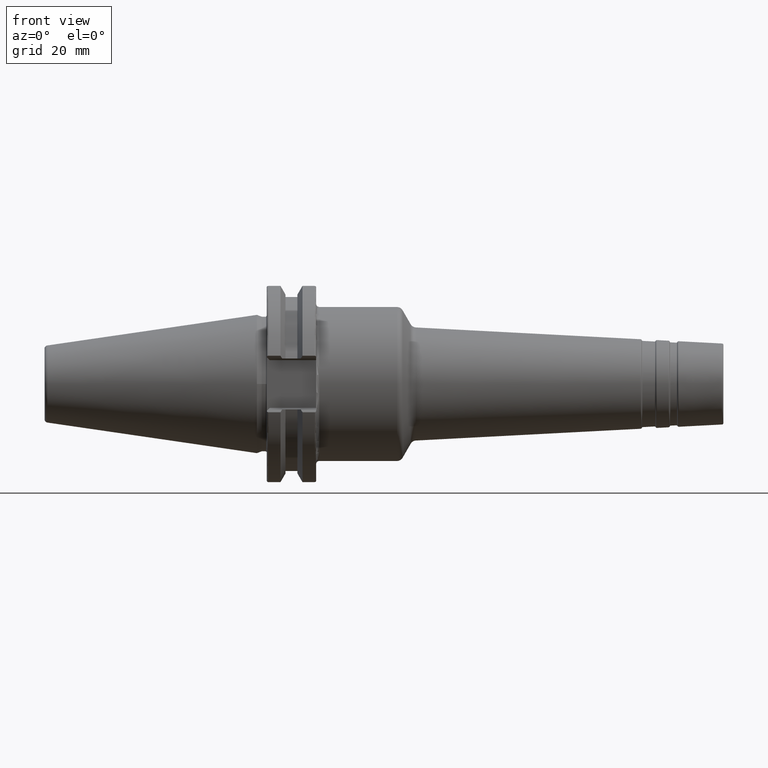
[diagram: clean part render]
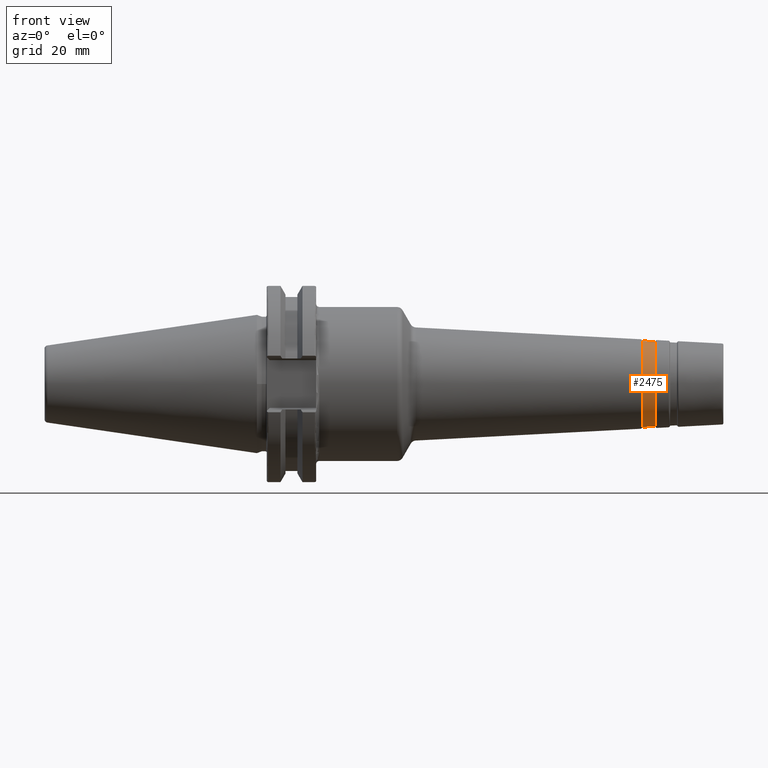
[diagram: same view with one face highlighted and labeled with its STEP entity id]
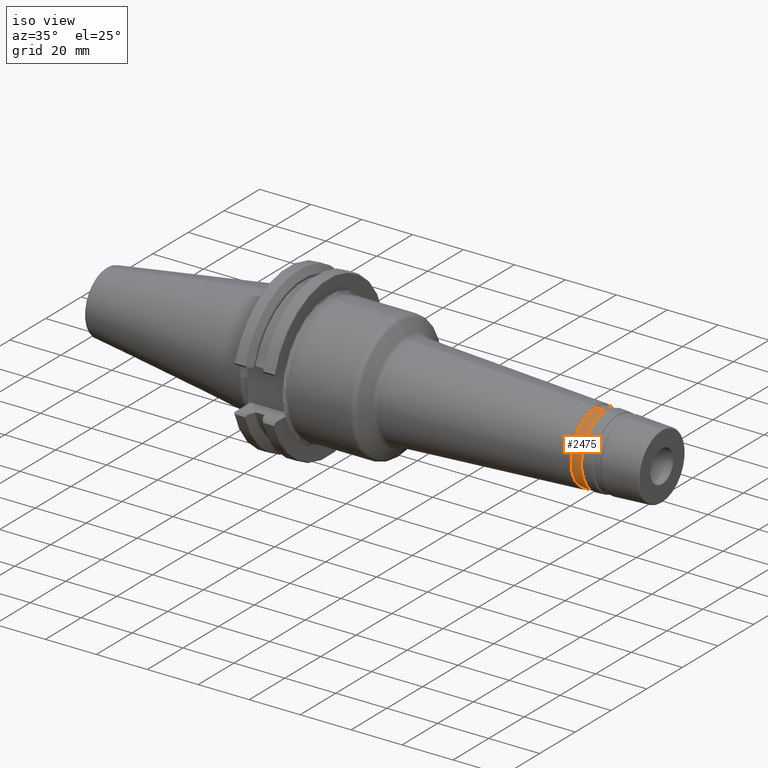
[diagram: same view with one face highlighted and labeled with its STEP entity id]
A machine part, front view. The second image highlights one B-rep face of the part: STEP entity #2475.
A second angle (iso view) of the same face is appended — the face is thin or edge-on in the first view.
In plain terms, the highlighted conical surface has half-angle 3 deg.
Its self-contained STEP definition (entity closure, byte-faithful):
#397=CARTESIAN_POINT('',(1.240139071396E2,0.E0,0.E0));
#398=DIRECTION('',(-1.E0,0.E0,0.E0));
#399=DIRECTION('',(0.E0,0.E0,-1.E0));
#400=AXIS2_PLACEMENT_3D('',#397,#398,#399);
#402=DIRECTION('',(-9.986295347546E-1,0.E0,-5.233595624294E-2));
#403=VECTOR('',#402,4.000000000006E0);
#404=CARTESIAN_POINT('',(1.280084252786E2,0.E0,-1.365315361557E1));
#405=LINE('',#404,#403);
#406=DIRECTION('',(-9.986295347546E-1,0.E0,5.233595624294E-2));
#407=VECTOR('',#406,4.000000000006E0);
#408=CARTESIAN_POINT('',(1.280084252786E2,0.E0,1.365315361557E1));
#409=LINE('',#408,#407);
#410=CARTESIAN_POINT('',(1.280084252786E2,0.E0,0.E0));
#411=DIRECTION('',(-1.E0,0.E0,0.E0));
#412=DIRECTION('',(0.E0,0.E0,-1.E0));
#413=AXIS2_PLACEMENT_3D('',#410,#411,#412);
#1754=CARTESIAN_POINT('',(1.280084252786E2,0.E0,-1.365315361557E1));
#1755=VERTEX_POINT('',#1754);
#1756=CARTESIAN_POINT('',(1.240139071396E2,0.E0,-1.386249744054E1));
#1757=VERTEX_POINT('',#1756);
#1810=CARTESIAN_POINT('',(1.280084252786E2,0.E0,1.365315361557E1));
#1811=VERTEX_POINT('',#1810);
#1812=CARTESIAN_POINT('',(1.240139071396E2,0.E0,1.386249744054E1));
#1813=VERTEX_POINT('',#1812);
#2461=CARTESIAN_POINT('',(1.260111662091E2,0.E0,0.E0));
#2462=DIRECTION('',(-1.E0,0.E0,0.E0));
#2463=DIRECTION('',(0.E0,0.E0,-1.E0));
#2464=AXIS2_PLACEMENT_3D('',#2461,#2462,#2463);
#2465=CONICAL_SURFACE('',#2464,1.375782552805E1,3.E0);
#2467=ORIENTED_EDGE('',*,*,#2466,.T.);
#2468=ORIENTED_EDGE('',*,*,#2456,.T.);
#2470=ORIENTED_EDGE('',*,*,#2469,.F.);
#2472=ORIENTED_EDGE('',*,*,#2471,.F.);
#2473=EDGE_LOOP('',(#2467,#2468,#2470,#2472));
#2474=FACE_OUTER_BOUND('',#2473,.F.);
#2475=ADVANCED_FACE('',(#2474),#2465,.T.);
#401=CIRCLE('',#400,1.386249744054E1);
#414=CIRCLE('',#413,1.365315361557E1);
#2456=EDGE_CURVE('',#1757,#1813,#401,.T.);
#2466=EDGE_CURVE('',#1755,#1757,#405,.T.);
#2469=EDGE_CURVE('',#1811,#1813,#409,.T.);
#2471=EDGE_CURVE('',#1755,#1811,#414,.T.);